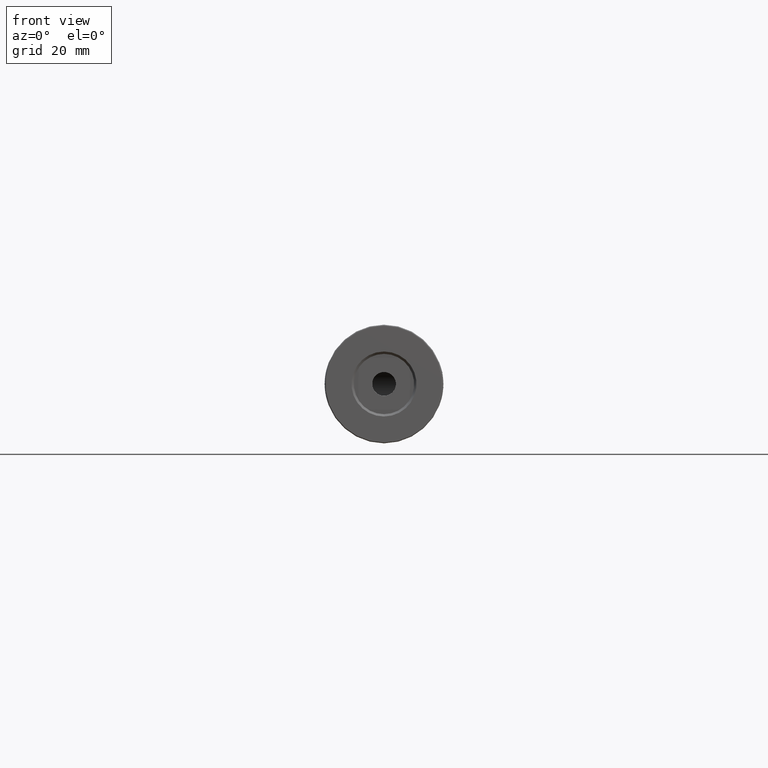
[diagram: clean part render]
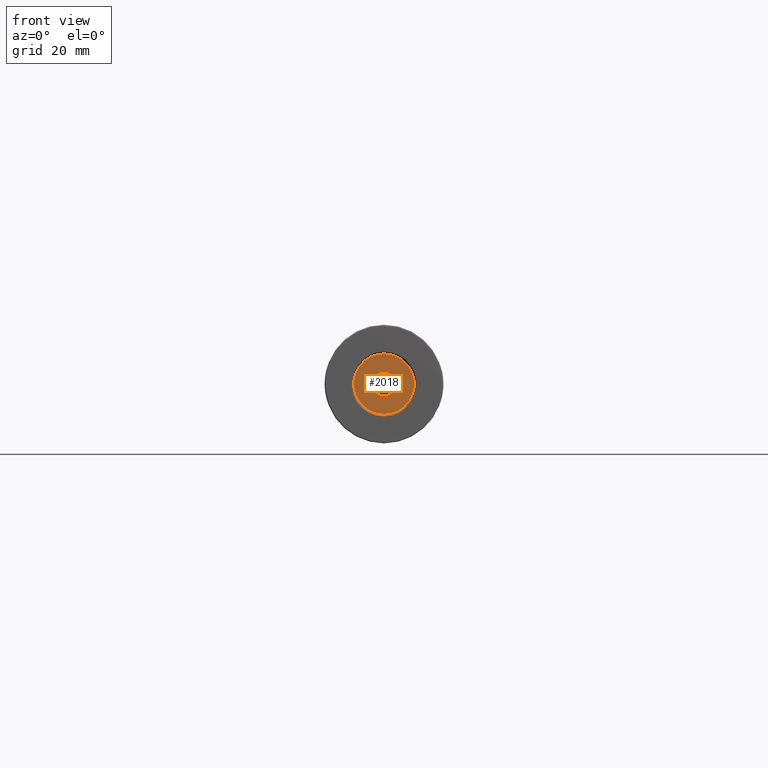
[diagram: same view with one face highlighted and labeled with its STEP entity id]
A machine part, front view. The second image highlights one B-rep face of the part: STEP entity #2018.
In plain terms, the highlighted planar face has unit normal (0, -1, 0).
Its self-contained STEP definition (entity closure, byte-faithful):
#77 = EDGE_CURVE ( 'NONE', #249, #3454, #3387, .T. ) ;
#119 = CARTESIAN_POINT ( 'NONE',  ( -22.50520183104453409, -73.10174781523060972, 50.00000000000000000 ) ) ;
#134 = DIRECTION ( 'NONE',  ( 0.0000000000000000000, -1.000000000000000000, 0.0000000000000000000 ) ) ;
#171 = EDGE_CURVE ( 'NONE', #3454, #249, #251, .T. ) ;
#249 = VERTEX_POINT ( 'NONE', #2075 ) ;
#251 = CIRCLE ( 'NONE', #2372, 2.499999999999995115 ) ;
#405 = CARTESIAN_POINT ( 'NONE',  ( -22.50520183104453409, -73.10174781523060972, 50.00000000000000000 ) ) ;
#532 = AXIS2_PLACEMENT_3D ( 'NONE', #119, #2510, #1134 ) ;
#653 = DIRECTION ( 'NONE',  ( 0.0000000000000000000, -1.000000000000000000, 0.0000000000000000000 ) ) ;
#713 = EDGE_LOOP ( 'NONE', ( #1052, #2933 ) ) ;
#869 = CIRCLE ( 'NONE', #532, 6.350000000000001421 ) ;
#900 = FACE_OUTER_BOUND ( 'NONE', #713, .T. ) ;
#932 = CARTESIAN_POINT ( 'NONE',  ( -22.50520183104453409, -73.10174781523060972, 50.00000000000000000 ) ) ;
#998 = DIRECTION ( 'NONE',  ( -0.0000000000000000000, 1.000000000000000000, -0.0000000000000000000 ) ) ;
#1052 = ORIENTED_EDGE ( 'NONE', *, *, #3164, .F. ) ;
#1134 = DIRECTION ( 'NONE',  ( 0.0000000000000000000, 0.0000000000000000000, 1.000000000000000000 ) ) ;
#1188 = ORIENTED_EDGE ( 'NONE', *, *, #171, .F. ) ;
#1204 = AXIS2_PLACEMENT_3D ( 'NONE', #1533, #2592, #1767 ) ;
#1292 = EDGE_LOOP ( 'NONE', ( #2567, #1188 ) ) ;
#1533 = CARTESIAN_POINT ( 'NONE',  ( -22.50520183104453409, -73.10174781523060972, 50.00000000000000000 ) ) ;
#1558 = CARTESIAN_POINT ( 'NONE',  ( -22.50520183104453409, -73.10174781523060972, 52.50000000000000000 ) ) ;
#1755 = VERTEX_POINT ( 'NONE', #1891 ) ;
#1767 = DIRECTION ( 'NONE',  ( 0.0000000000000000000, 0.0000000000000000000, 1.000000000000000000 ) ) ;
#1891 = CARTESIAN_POINT ( 'NONE',  ( -22.50520183104453409, -73.10174781523060972, 43.64999999999999858 ) ) ;
#2018 = ADVANCED_FACE ( 'NONE', ( #2331, #900 ), #3133, .T. ) ;
#2049 = DIRECTION ( 'NONE',  ( 0.0000000000000000000, 0.0000000000000000000, 1.000000000000000000 ) ) ;
#2075 = CARTESIAN_POINT ( 'NONE',  ( -22.50520183104453409, -73.10174781523060972, 47.50000000000000711 ) ) ;
#2083 = VERTEX_POINT ( 'NONE', #3118 ) ;
#2266 = DIRECTION ( 'NONE',  ( 0.0000000000000000000, 0.0000000000000000000, -1.000000000000000000 ) ) ;
#2304 = CARTESIAN_POINT ( 'NONE',  ( -22.50520183104453409, -73.10174781523060972, 50.00000000000000000 ) ) ;
#2331 = FACE_BOUND ( 'NONE', #1292, .T. ) ;
#2372 = AXIS2_PLACEMENT_3D ( 'NONE', #932, #134, #2432 ) ;
#2432 = DIRECTION ( 'NONE',  ( 0.0000000000000000000, 0.0000000000000000000, -1.000000000000000000 ) ) ;
#2510 = DIRECTION ( 'NONE',  ( -0.0000000000000000000, 1.000000000000000000, -0.0000000000000000000 ) ) ;
#2567 = ORIENTED_EDGE ( 'NONE', *, *, #77, .F. ) ;
#2592 = DIRECTION ( 'NONE',  ( 0.0000000000000000000, -1.000000000000000000, 0.0000000000000000000 ) ) ;
#2708 = EDGE_CURVE ( 'NONE', #2083, #1755, #869, .T. ) ;
#2886 = CIRCLE ( 'NONE', #3338, 6.350000000000001421 ) ;
#2933 = ORIENTED_EDGE ( 'NONE', *, *, #2708, .F. ) ;
#3118 = CARTESIAN_POINT ( 'NONE',  ( -22.50520183104453409, -73.10174781523060972, 56.35000000000000142 ) ) ;
#3133 = PLANE ( 'NONE',  #1204 ) ;
#3164 = EDGE_CURVE ( 'NONE', #1755, #2083, #2886, .T. ) ;
#3338 = AXIS2_PLACEMENT_3D ( 'NONE', #2304, #998, #2049 ) ;
#3387 = CIRCLE ( 'NONE', #3440, 2.499999999999995115 ) ;
#3440 = AXIS2_PLACEMENT_3D ( 'NONE', #405, #653, #2266 ) ;
#3454 = VERTEX_POINT ( 'NONE', #1558 ) ;